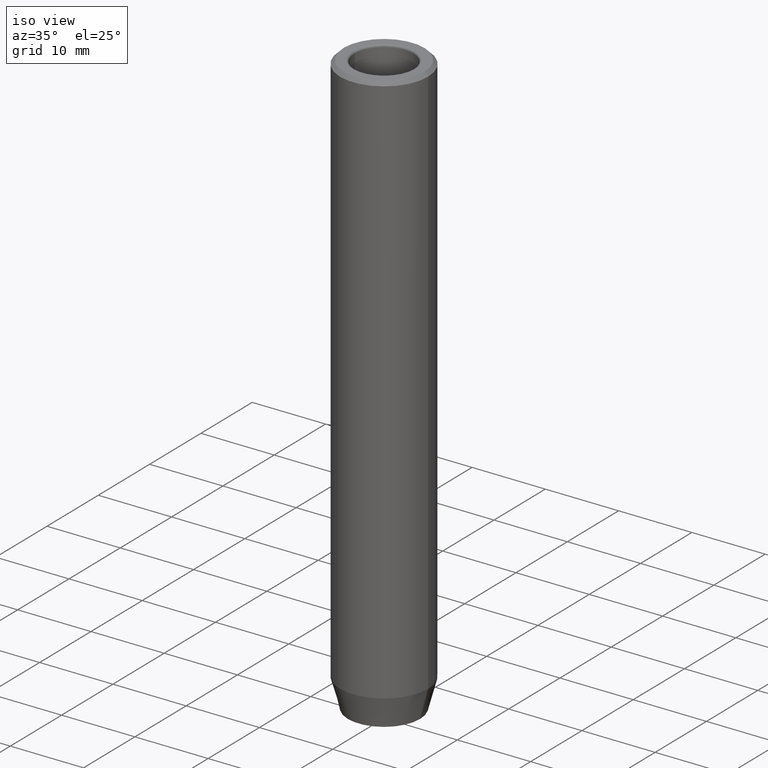
[diagram: clean part render]
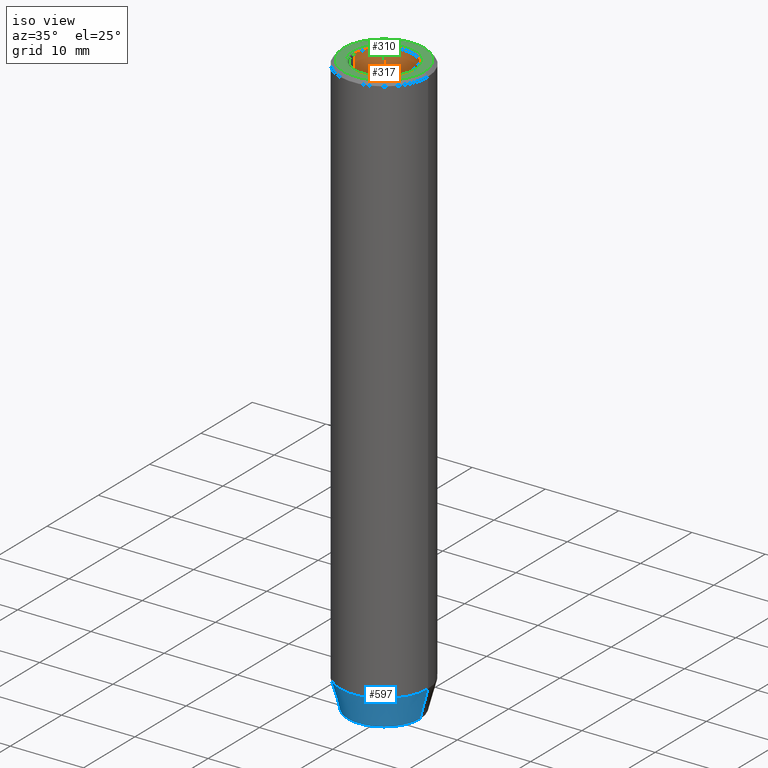
[diagram: same view with three faces highlighted in distinct colors, each labeled with its STEP entity id]
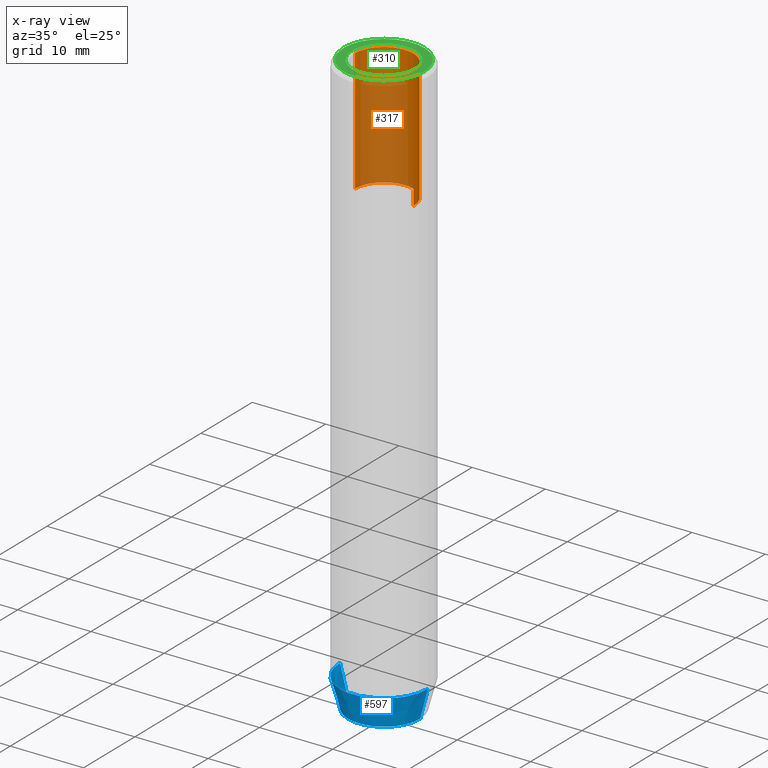
[diagram: x-ray of the same camera — body ghosted, the three highlighted faces saturated]
A machine part, iso view with three faces highlighted in distinct colors.
The next image is the same camera in x-ray (body ghosted, the three faces saturated) — at least one of them is partly hidden behind the body in this view.
Their STEP definitions:

[orange] entity #317 — the highlighted cylindrical surface (edge-blend (fillet) strip) has radius 4 mm, axis along (-0, -0, 1).
#5 = AXIS2_PLACEMENT_3D ( 'NONE', #385, #585, #139 ) ;
#24 = VERTEX_POINT ( 'NONE', #623 ) ;
#49 = DIRECTION ( 'NONE',  ( 1.000000000000000000, 0.000000000000000000, 0.000000000000000000 ) ) ;
#68 = CYLINDRICAL_SURFACE ( 'NONE', #461, 3.999999999999996447 ) ;
#100 = CIRCLE ( 'NONE', #5, 3.999999999999996447 ) ;
#115 = EDGE_CURVE ( 'NONE', #165, #163, #234, .T. ) ;
#117 = VECTOR ( 'NONE', #274, 1000.000000000000000 ) ;
#125 = DIRECTION ( 'NONE',  ( -0.000000000000000000, -0.000000000000000000, 1.000000000000000000 ) ) ;
#129 = DIRECTION ( 'NONE',  ( 1.000000000000000000, 0.000000000000000000, 0.000000000000000000 ) ) ;
#139 = DIRECTION ( 'NONE',  ( 1.000000000000000000, 0.000000000000000000, 0.000000000000000000 ) ) ;
#156 = DIRECTION ( 'NONE',  ( -0.000000000000000000, -0.000000000000000000, 1.000000000000000000 ) ) ;
#159 = VECTOR ( 'NONE', #125, 1000.000000000000000 ) ;
#163 = VERTEX_POINT ( 'NONE', #292 ) ;
#165 = VERTEX_POINT ( 'NONE', #549 ) ;
#169 = CARTESIAN_POINT ( 'NONE',  ( 3.999999999999996447, 0.000000000000000000, 0.000000000000000000 ) ) ;
#234 = LINE ( 'NONE', #528, #117 ) ;
#256 = EDGE_CURVE ( 'NONE', #24, #163, #100, .T. ) ;
#268 = ORIENTED_EDGE ( 'NONE', *, *, #327, .T. ) ;
#274 = DIRECTION ( 'NONE',  ( -0.000000000000000000, -0.000000000000000000, 1.000000000000000000 ) ) ;
#292 = CARTESIAN_POINT ( 'NONE',  ( -3.999999999999996447, 4.898587196589408884E-16, -0.2999999999999999889 ) ) ;
#301 = CIRCLE ( 'NONE', #471, 3.999999999999995559 ) ;
#313 = ORIENTED_EDGE ( 'NONE', *, *, #256, .T. ) ;
#317 = ADVANCED_FACE ( 'NONE', ( #335 ), #68, .F. ) ;
#327 = EDGE_CURVE ( 'NONE', #605, #24, #417, .T. ) ;
#330 = ORIENTED_EDGE ( 'NONE', *, *, #546, .F. ) ;
#335 = FACE_OUTER_BOUND ( 'NONE', #371, .T. ) ;
#351 = ORIENTED_EDGE ( 'NONE', *, *, #115, .F. ) ;
#371 = EDGE_LOOP ( 'NONE', ( #351, #330, #268, #313 ) ) ;
#385 = CARTESIAN_POINT ( 'NONE',  ( 0.000000000000000000, 0.000000000000000000, -0.2999999999999999889 ) ) ;
#406 = CARTESIAN_POINT ( 'NONE',  ( 3.999999999999995559, 0.000000000000000000, -17.00000000000000000 ) ) ;
#417 = LINE ( 'NONE', #169, #159 ) ;
#423 = CARTESIAN_POINT ( 'NONE',  ( 0.000000000000000000, 0.000000000000000000, 0.000000000000000000 ) ) ;
#439 = CARTESIAN_POINT ( 'NONE',  ( 0.000000000000000000, 0.000000000000000000, -17.00000000000000000 ) ) ;
#461 = AXIS2_PLACEMENT_3D ( 'NONE', #423, #630, #129 ) ;
#471 = AXIS2_PLACEMENT_3D ( 'NONE', #439, #156, #49 ) ;
#528 = CARTESIAN_POINT ( 'NONE',  ( -3.999999999999996447, 4.898587196589408884E-16, 0.000000000000000000 ) ) ;
#546 = EDGE_CURVE ( 'NONE', #605, #165, #301, .T. ) ;
#549 = CARTESIAN_POINT ( 'NONE',  ( -3.999999999999995559, 4.898587196589407898E-16, -17.00000000000000000 ) ) ;
#585 = DIRECTION ( 'NONE',  ( -0.000000000000000000, -0.000000000000000000, 1.000000000000000000 ) ) ;
#605 = VERTEX_POINT ( 'NONE', #406 ) ;
#623 = CARTESIAN_POINT ( 'NONE',  ( 3.999999999999996447, 0.000000000000000000, -0.2999999999999999889 ) ) ;
#630 = DIRECTION ( 'NONE',  ( -0.000000000000000000, -0.000000000000000000, 1.000000000000000000 ) ) ;

[blue] entity #597 — the highlighted conical surface has half-angle 15 deg.
#15 = VERTEX_POINT ( 'NONE', #477 ) ;
#25 = CARTESIAN_POINT ( 'NONE',  ( -6.000000000000000000, 7.347880794884119736E-16, -76.00000000000001421 ) ) ;
#57 = VERTEX_POINT ( 'NONE', #25 ) ;
#81 = EDGE_LOOP ( 'NONE', ( #353, #418, #534, #319 ) ) ;
#91 = EDGE_CURVE ( 'NONE', #298, #57, #127, .T. ) ;
#101 = CONICAL_SURFACE ( 'NONE', #168, 6.000000000000000000, 0.2617993877991491858 ) ;
#118 = DIRECTION ( 'NONE',  ( -0.000000000000000000, -0.000000000000000000, 1.000000000000000000 ) ) ;
#121 = VECTOR ( 'NONE', #565, 1000.000000000000000 ) ;
#127 = LINE ( 'NONE', #320, #595 ) ;
#142 = CIRCLE ( 'NONE', #398, 4.928203230275509661 ) ;
#152 = AXIS2_PLACEMENT_3D ( 'NONE', #196, #297, #294 ) ;
#164 = CARTESIAN_POINT ( 'NONE',  ( 0.000000000000000000, 0.000000000000000000, -76.00000000000001421 ) ) ;
#168 = AXIS2_PLACEMENT_3D ( 'NONE', #164, #118, #460 ) ;
#196 = CARTESIAN_POINT ( 'NONE',  ( 0.000000000000000000, 0.000000000000000000, -76.00000000000001421 ) ) ;
#215 = CARTESIAN_POINT ( 'NONE',  ( -4.928203230275509661, 6.691594553194334567E-16, -80.00000000000001421 ) ) ;
#262 = DIRECTION ( 'NONE',  ( 1.000000000000000000, 0.000000000000000000, 0.000000000000000000 ) ) ;
#294 = DIRECTION ( 'NONE',  ( 1.000000000000000000, 0.000000000000000000, 0.000000000000000000 ) ) ;
#297 = DIRECTION ( 'NONE',  ( -0.000000000000000000, -0.000000000000000000, 1.000000000000000000 ) ) ;
#298 = VERTEX_POINT ( 'NONE', #215 ) ;
#314 = EDGE_CURVE ( 'NONE', #298, #15, #142, .T. ) ;
#318 = LINE ( 'NONE', #374, #121 ) ;
#319 = ORIENTED_EDGE ( 'NONE', *, *, #469, .F. ) ;
#320 = CARTESIAN_POINT ( 'NONE',  ( -6.000000000000000000, 7.347880794884119736E-16, -76.00000000000001421 ) ) ;
#353 = ORIENTED_EDGE ( 'NONE', *, *, #91, .F. ) ;
#362 = EDGE_CURVE ( 'NONE', #15, #564, #318, .T. ) ;
#374 = CARTESIAN_POINT ( 'NONE',  ( 6.000000000000000000, 0.000000000000000000, -76.00000000000001421 ) ) ;
#387 = DIRECTION ( 'NONE',  ( -0.000000000000000000, -0.000000000000000000, 1.000000000000000000 ) ) ;
#398 = AXIS2_PLACEMENT_3D ( 'NONE', #436, #387, #262 ) ;
#408 = FACE_OUTER_BOUND ( 'NONE', #81, .T. ) ;
#418 = ORIENTED_EDGE ( 'NONE', *, *, #314, .T. ) ;
#436 = CARTESIAN_POINT ( 'NONE',  ( 0.000000000000000000, 0.000000000000000000, -80.00000000000001421 ) ) ;
#460 = DIRECTION ( 'NONE',  ( 1.000000000000000000, 0.000000000000000000, 0.000000000000000000 ) ) ;
#469 = EDGE_CURVE ( 'NONE', #57, #564, #504, .T. ) ;
#472 = DIRECTION ( 'NONE',  ( -0.2588190451025205174, 3.169619151431761860E-17, 0.9659258262890684232 ) ) ;
#477 = CARTESIAN_POINT ( 'NONE',  ( 4.928203230275509661, 0.000000000000000000, -80.00000000000001421 ) ) ;
#504 = CIRCLE ( 'NONE', #152, 6.000000000000000000 ) ;
#534 = ORIENTED_EDGE ( 'NONE', *, *, #362, .T. ) ;
#562 = CARTESIAN_POINT ( 'NONE',  ( 6.000000000000000000, 0.000000000000000000, -76.00000000000001421 ) ) ;
#564 = VERTEX_POINT ( 'NONE', #562 ) ;
#565 = DIRECTION ( 'NONE',  ( 0.2588190451025205174, 0.000000000000000000, 0.9659258262890684232 ) ) ;
#595 = VECTOR ( 'NONE', #472, 1000.000000000000000 ) ;
#597 = ADVANCED_FACE ( 'NONE', ( #408 ), #101, .T. ) ;

[green] entity #310 — the highlighted planar face has unit normal (0, -0, 1).
#3 = PLANE ( 'NONE',  #217 ) ;
#17 = ORIENTED_EDGE ( 'NONE', *, *, #552, .T. ) ;
#38 = AXIS2_PLACEMENT_3D ( 'NONE', #59, #396, #295 ) ;
#53 = FACE_BOUND ( 'NONE', #450, .T. ) ;
#59 = CARTESIAN_POINT ( 'NONE',  ( 0.000000000000000000, 0.000000000000000000, 0.000000000000000000 ) ) ;
#88 = CIRCLE ( 'NONE', #280, 4.299999999999996270 ) ;
#108 = EDGE_CURVE ( 'NONE', #470, #619, #438, .T. ) ;
#110 = DIRECTION ( 'NONE',  ( 0.000000000000000000, 0.000000000000000000, -1.000000000000000000 ) ) ;
#122 = DIRECTION ( 'NONE',  ( 1.000000000000000000, 0.000000000000000000, 0.000000000000000000 ) ) ;
#135 = ORIENTED_EDGE ( 'NONE', *, *, #302, .T. ) ;
#178 = DIRECTION ( 'NONE',  ( 1.000000000000000000, 0.000000000000000000, 0.000000000000000000 ) ) ;
#193 = CIRCLE ( 'NONE', #455, 5.500000000000010658 ) ;
#202 = DIRECTION ( 'NONE',  ( 1.000000000000000000, 0.000000000000000000, 0.000000000000000000 ) ) ;
#217 = AXIS2_PLACEMENT_3D ( 'NONE', #512, #411, #122 ) ;
#220 = CARTESIAN_POINT ( 'NONE',  ( 5.500000000000010658, 7.041719095097287782E-16, 0.000000000000000000 ) ) ;
#229 = CARTESIAN_POINT ( 'NONE',  ( 0.000000000000000000, 0.000000000000000000, 0.000000000000000000 ) ) ;
#235 = CIRCLE ( 'NONE', #38, 4.299999999999996270 ) ;
#247 = FACE_OUTER_BOUND ( 'NONE', #569, .T. ) ;
#259 = CARTESIAN_POINT ( 'NONE',  ( 0.000000000000000000, 0.000000000000000000, 0.000000000000000000 ) ) ;
#266 = ORIENTED_EDGE ( 'NONE', *, *, #300, .T. ) ;
#280 = AXIS2_PLACEMENT_3D ( 'NONE', #259, #110, #202 ) ;
#295 = DIRECTION ( 'NONE',  ( 1.000000000000000000, 0.000000000000000000, 0.000000000000000000 ) ) ;
#300 = EDGE_CURVE ( 'NONE', #481, #307, #88, .T. ) ;
#302 = EDGE_CURVE ( 'NONE', #307, #481, #235, .T. ) ;
#303 = ORIENTED_EDGE ( 'NONE', *, *, #108, .T. ) ;
#307 = VERTEX_POINT ( 'NONE', #498 ) ;
#310 = ADVANCED_FACE ( 'NONE', ( #53, #247 ), #3, .T. ) ;
#340 = CARTESIAN_POINT ( 'NONE',  ( 4.299999999999996270, 0.000000000000000000, 0.000000000000000000 ) ) ;
#346 = DIRECTION ( 'NONE',  ( -0.000000000000000000, -0.000000000000000000, 1.000000000000000000 ) ) ;
#378 = AXIS2_PLACEMENT_3D ( 'NONE', #229, #627, #178 ) ;
#392 = CARTESIAN_POINT ( 'NONE',  ( -5.500000000000010658, 0.000000000000000000, 0.000000000000000000 ) ) ;
#394 = CARTESIAN_POINT ( 'NONE',  ( 0.000000000000000000, 0.000000000000000000, 0.000000000000000000 ) ) ;
#396 = DIRECTION ( 'NONE',  ( 0.000000000000000000, 0.000000000000000000, -1.000000000000000000 ) ) ;
#411 = DIRECTION ( 'NONE',  ( 0.000000000000000000, -0.000000000000000000, 1.000000000000000000 ) ) ;
#438 = CIRCLE ( 'NONE', #378, 5.500000000000010658 ) ;
#450 = EDGE_LOOP ( 'NONE', ( #266, #135 ) ) ;
#455 = AXIS2_PLACEMENT_3D ( 'NONE', #394, #346, #557 ) ;
#470 = VERTEX_POINT ( 'NONE', #392 ) ;
#481 = VERTEX_POINT ( 'NONE', #340 ) ;
#498 = CARTESIAN_POINT ( 'NONE',  ( -4.299999999999996270, 5.265981236333614526E-16, 0.000000000000000000 ) ) ;
#512 = CARTESIAN_POINT ( 'NONE',  ( 0.000000000000000000, 0.000000000000000000, 0.000000000000000000 ) ) ;
#552 = EDGE_CURVE ( 'NONE', #619, #470, #193, .T. ) ;
#557 = DIRECTION ( 'NONE',  ( 1.000000000000000000, 0.000000000000000000, 0.000000000000000000 ) ) ;
#569 = EDGE_LOOP ( 'NONE', ( #303, #17 ) ) ;
#619 = VERTEX_POINT ( 'NONE', #220 ) ;
#627 = DIRECTION ( 'NONE',  ( -0.000000000000000000, -0.000000000000000000, 1.000000000000000000 ) ) ;